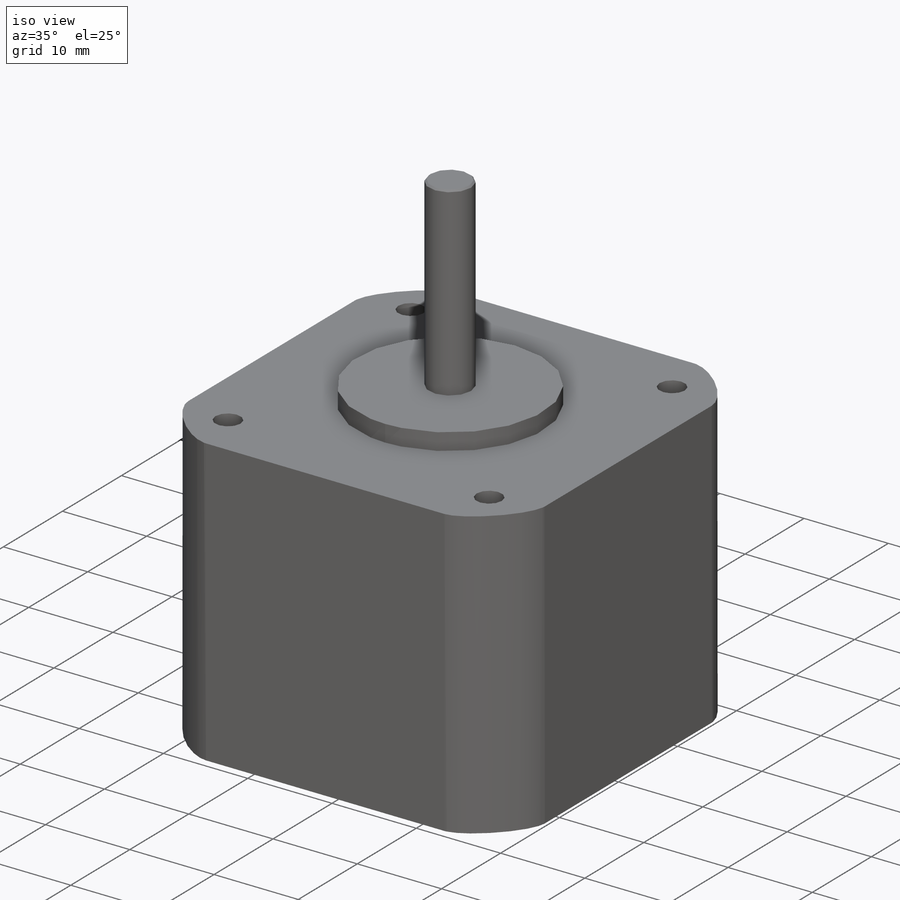
[diagram: iso view]
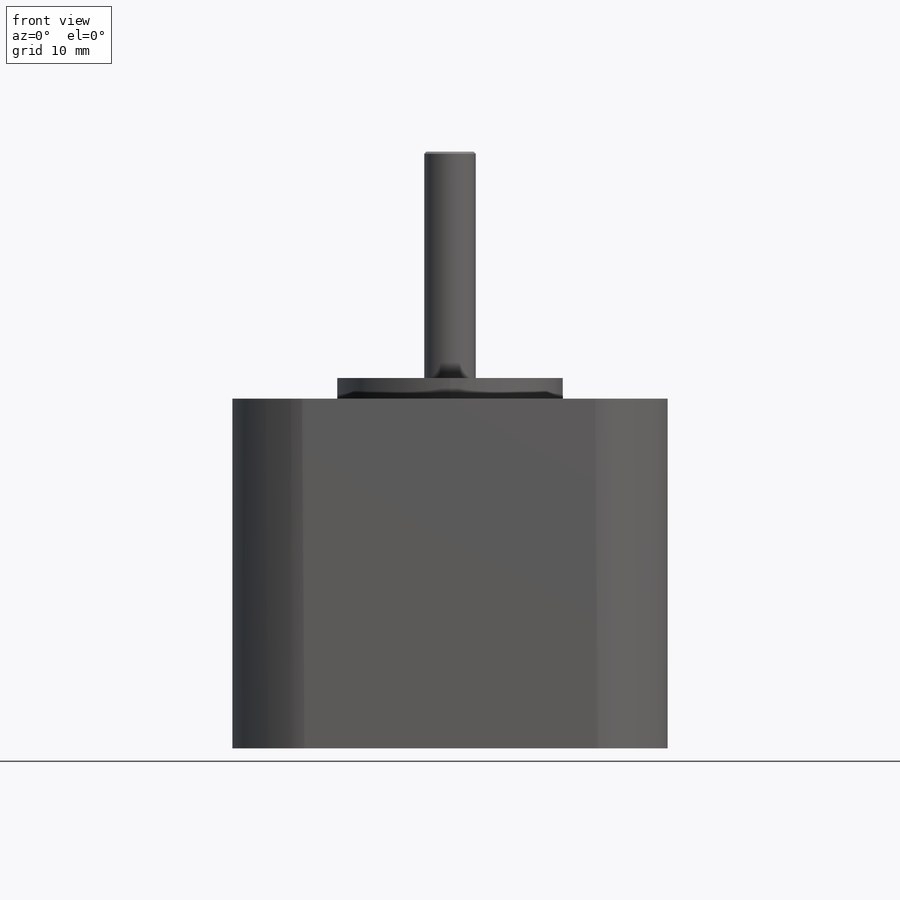
[diagram: front view]
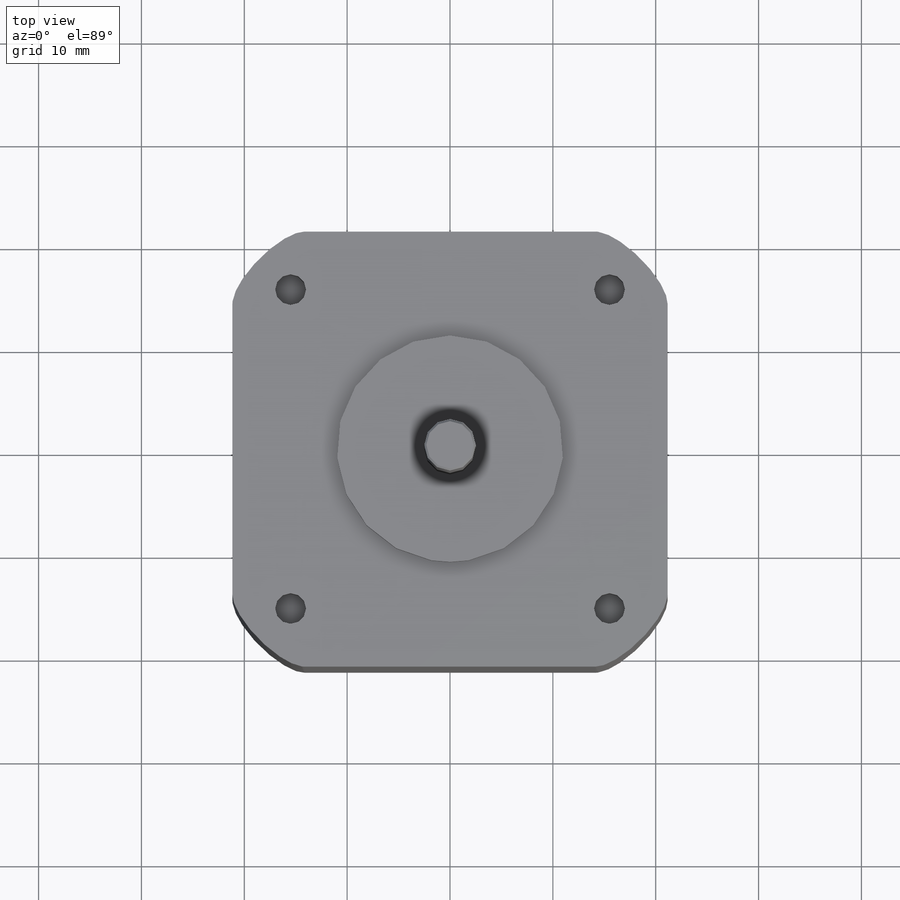
[diagram: top view]
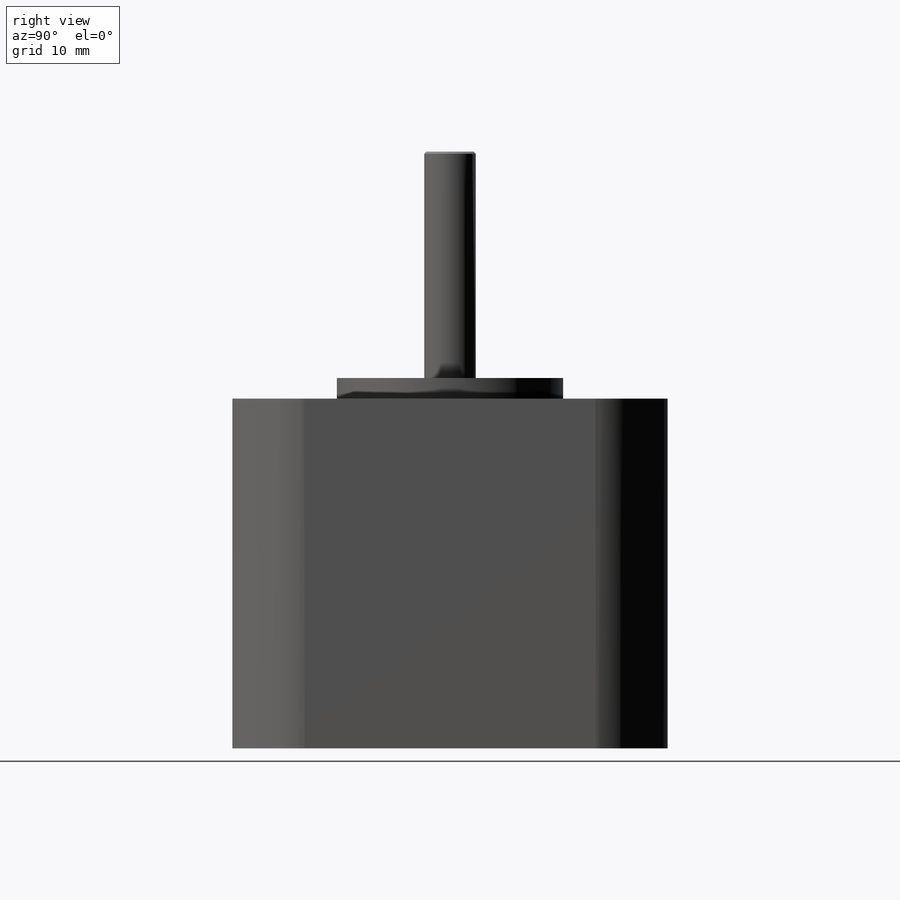
[diagram: right view]
SOLIDWORKS PART (.sldprt)
format: sldprt  version: not decoded by parser v0  size: 234,496 bytes
history: native  units: mm
features: sketch x4, extrude x3, material x1, fillet x1, cut_extrude x1, chamfer x1 (+13 scaffold rows collapsed)
feature tree (24):
  scaffold x13  (default folders/planes/origin — collapsed)
  material  "Material <not specified>"
  sketch  "Sketch1"  dims[D3=3.0mm D1=42.3mm D2=31.1mm]
  extrude  "Boss-Extrude1"  Depth=34mm
  fillet  "Fillet1"  Radius=7mm
  cut_extrude  "Cut-Extrude1"  [1 undecoded]
  sketch  "Sketch1<3>"  dims[D1=4.0mm]
  sketch  "Sketch3"  dims[D1=22.0mm D2=5.0mm]
  extrude  "Boss-Extrude2"  Depth=2mm
  extrude  "Boss-Extrude3"  [1 undecoded]
  sketch  "Sketch3<2>"  dims[D1=24.0mm]
  chamfer  "Chamfer1"  Distance=0.2mm Angle=45deg
decode coverage: 8 of 10 modeling features carry decoded parameters
note: 2 parameter values undecoded
note: suppression state not decoded; provenance and decode notes live in map.json
